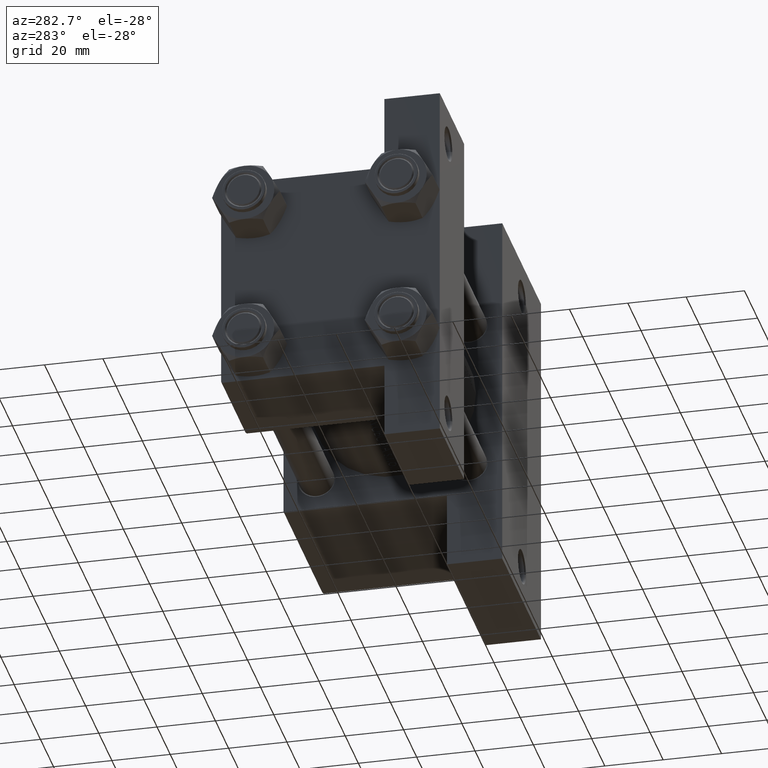
[diagram: clean part render]
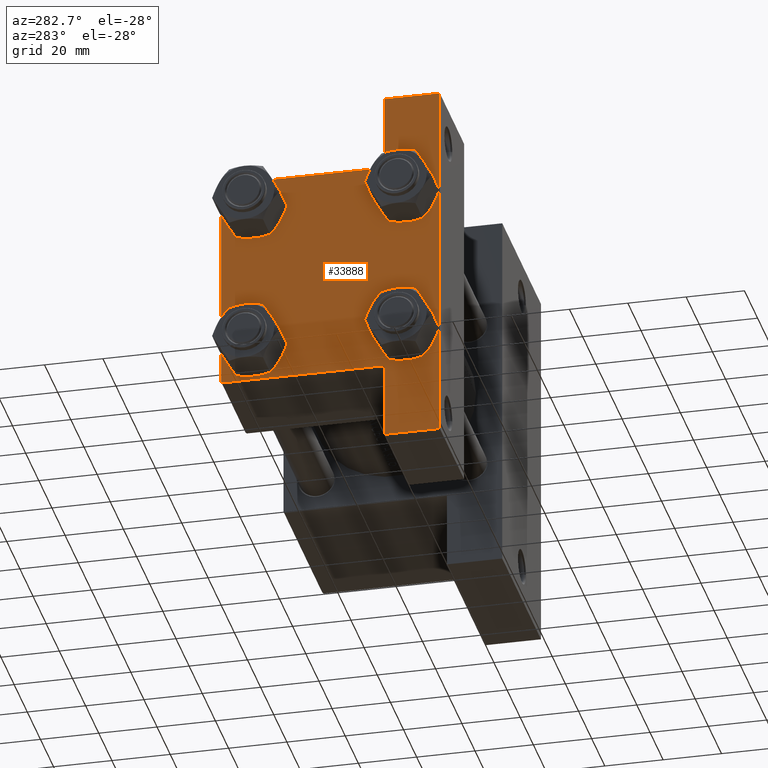
[diagram: same view with one face highlighted and labeled with its STEP entity id]
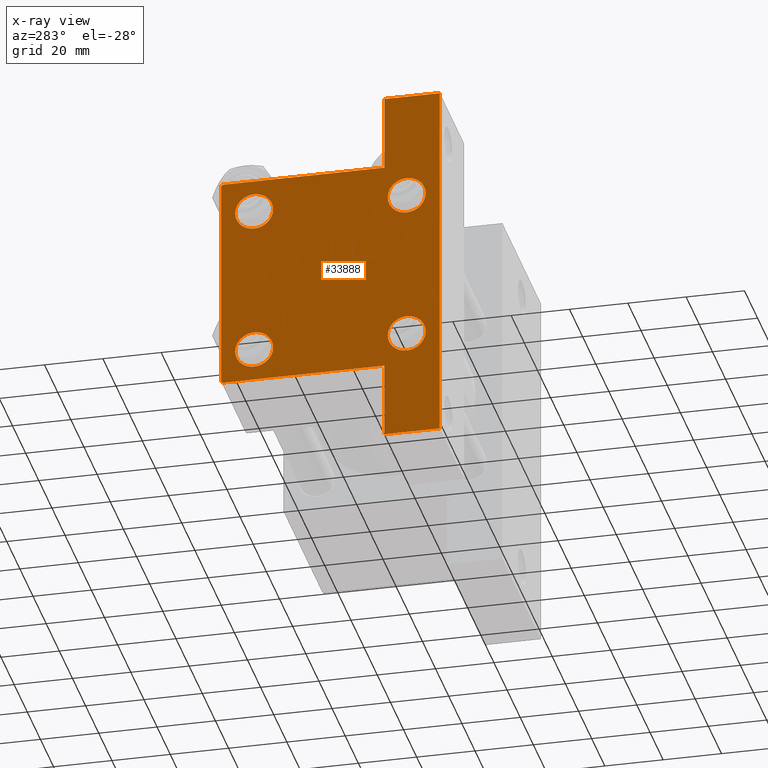
[diagram: x-ray of the same camera — body ghosted, the highlighted face saturated]
A machine part, auxiliary view. The second image highlights one B-rep face of the part: STEP entity #33888.
The next image is the same camera in x-ray: the body ghosted, the highlighted face saturated — about 0% of this face is hidden behind the body in this view.
In plain terms, the highlighted planar face has unit normal (-1, 0, -0).
Its self-contained STEP definition (entity closure, byte-faithful):
#672 = CARTESIAN_POINT ( 'NONE',  ( 0.000000000000000000, 37.49999999999999289, 37.50000000000000000 ) ) ;
#769 = CARTESIAN_POINT ( 'NONE',  ( 0.000000000000000000, -63.50000000000000000, -37.49999999999999289 ) ) ;
#1019 = CARTESIAN_POINT ( 'NONE',  ( 0.000000000000000000, 0.000000000000000000, 0.000000000000000000 ) ) ;
#1964 = CARTESIAN_POINT ( 'NONE',  ( 0.000000000000000000, 26.14999999999999858, 19.64999999999998437 ) ) ;
#2338 = VERTEX_POINT ( 'NONE', #31940 ) ;
#2354 = LINE ( 'NONE', #17017, #26414 ) ;
#2527 = VECTOR ( 'NONE', #11132, 1000.000000000000000 ) ;
#2625 = LINE ( 'NONE', #6716, #4488 ) ;
#2643 = EDGE_LOOP ( 'NONE', ( #43424, #30111, #2725, #38778, #41978, #46371, #40710, #22977, #19514, #14851 ) ) ;
#2725 = ORIENTED_EDGE ( 'NONE', *, *, #37854, .F. ) ;
#3140 = CARTESIAN_POINT ( 'NONE',  ( 0.000000000000000000, 26.14999999999999858, -26.15000000000000213 ) ) ;
#3409 = EDGE_CURVE ( 'NONE', #3422, #7363, #2354, .T. ) ;
#3422 = VERTEX_POINT ( 'NONE', #22979 ) ;
#3677 = DIRECTION ( 'NONE',  ( -1.334402673828313339E-16, -1.000000000000000000, 0.000000000000000000 ) ) ;
#3855 = VERTEX_POINT ( 'NONE', #769 ) ;
#4089 = VERTEX_POINT ( 'NONE', #17333 ) ;
#4260 = EDGE_LOOP ( 'NONE', ( #26822, #38279 ) ) ;
#4488 = VECTOR ( 'NONE', #31731, 1000.000000000000114 ) ;
#4638 = FACE_BOUND ( 'NONE', #12295, .T. ) ;
#4748 = EDGE_LOOP ( 'NONE', ( #40468, #17376 ) ) ;
#5505 = CARTESIAN_POINT ( 'NONE',  ( 0.000000000000000000, 37.49999999999999289, -37.50000000000000000 ) ) ;
#6463 = DIRECTION ( 'NONE',  ( 0.000000000000000000, 0.000000000000000000, 1.000000000000000000 ) ) ;
#6683 = VERTEX_POINT ( 'NONE', #31727 ) ;
#6716 = CARTESIAN_POINT ( 'NONE',  ( -0.000000000000000000, -37.25000000000000000, 37.25000000000000000 ) ) ;
#6846 = CARTESIAN_POINT ( 'NONE',  ( 1.561251128379126385E-14, 63.50000000000001421, 26.72167621838005047 ) ) ;
#7232 = DIRECTION ( 'NONE',  ( 1.000000000000000000, -0.000000000000000000, 0.000000000000000000 ) ) ;
#7284 = LINE ( 'NONE', #36637, #25717 ) ;
#7295 = CARTESIAN_POINT ( 'NONE',  ( 0.000000000000000000, -63.49999999999998579, 26.72167621838007889 ) ) ;
#7323 = DIRECTION ( 'NONE',  ( 0.000000000000000000, -1.734723475976806848E-16, -1.000000000000000000 ) ) ;
#7363 = VERTEX_POINT ( 'NONE', #17424 ) ;
#7608 = CIRCLE ( 'NONE', #32152, 6.500000000000015987 ) ;
#7614 = DIRECTION ( 'NONE',  ( -1.334402673828314079E-16, -1.000000000000000000, 0.000000000000000000 ) ) ;
#7946 = EDGE_CURVE ( 'NONE', #32646, #6683, #22004, .T. ) ;
#8135 = CIRCLE ( 'NONE', #28077, 6.500000000000023093 ) ;
#8156 = CARTESIAN_POINT ( 'NONE',  ( 0.000000000000000000, 37.49999999999999289, 37.50000000000000000 ) ) ;
#8239 = CIRCLE ( 'NONE', #46609, 6.500000000000023093 ) ;
#8482 = DIRECTION ( 'NONE',  ( -0.000000000000000000, 0.000000000000000000, 1.000000000000000000 ) ) ;
#8823 = EDGE_LOOP ( 'NONE', ( #45026, #15986 ) ) ;
#8849 = VECTOR ( 'NONE', #38214, 1000.000000000000000 ) ;
#9017 = CARTESIAN_POINT ( 'NONE',  ( 0.000000000000000000, -26.14999999999999147, 26.15000000000000924 ) ) ;
#10552 = LINE ( 'NONE', #13674, #43368 ) ;
#11132 = DIRECTION ( 'NONE',  ( 0.000000000000000000, -1.734723475976806848E-16, -1.000000000000000000 ) ) ;
#11188 = VECTOR ( 'NONE', #20179, 1000.000000000000000 ) ;
#11591 = ORIENTED_EDGE ( 'NONE', *, *, #33127, .T. ) ;
#11733 = DIRECTION ( 'NONE',  ( 0.000000000000000000, 0.000000000000000000, -1.000000000000000000 ) ) ;
#12029 = LINE ( 'NONE', #5505, #11188 ) ;
#12295 = EDGE_LOOP ( 'NONE', ( #11591, #40122 ) ) ;
#12333 = VECTOR ( 'NONE', #7323, 1000.000000000000000 ) ;
#13022 = CARTESIAN_POINT ( 'NONE',  ( 0.000000000000000000, -26.14999999999999147, -19.64999999999999503 ) ) ;
#13674 = CARTESIAN_POINT ( 'NONE',  ( 0.000000000000000000, -37.50000000000000711, 37.49999999999999289 ) ) ;
#13942 = CARTESIAN_POINT ( 'NONE',  ( 0.000000000000000000, -26.14999999999999147, 26.15000000000000924 ) ) ;
#14851 = ORIENTED_EDGE ( 'NONE', *, *, #23289, .F. ) ;
#15310 = VERTEX_POINT ( 'NONE', #27771 ) ;
#15500 = DIRECTION ( 'NONE',  ( 0.000000000000000000, 0.7071067811865474617, -0.7071067811865474617 ) ) ;
#15986 = ORIENTED_EDGE ( 'NONE', *, *, #42265, .T. ) ;
#16460 = DIRECTION ( 'NONE',  ( 0.000000000000000000, 0.000000000000000000, 1.000000000000000000 ) ) ;
#16483 = EDGE_CURVE ( 'NONE', #34786, #33950, #39349, .T. ) ;
#16649 = CARTESIAN_POINT ( 'NONE',  ( 0.000000000000000000, 26.14999999999999858, 32.65000000000002700 ) ) ;
#17017 = CARTESIAN_POINT ( 'NONE',  ( 0.000000000000000000, 37.24999999999999289, 37.24999999999999289 ) ) ;
#17333 = CARTESIAN_POINT ( 'NONE',  ( 3.469446951953614978E-15, -37.49999999999999289, -18.50000000000000355 ) ) ;
#17376 = ORIENTED_EDGE ( 'NONE', *, *, #41226, .T. ) ;
#17424 = CARTESIAN_POINT ( 'NONE',  ( 0.000000000000000000, 37.49999999999999289, 37.00000000000000000 ) ) ;
#18003 = DIRECTION ( 'NONE',  ( 0.000000000000000000, 0.000000000000000000, 1.000000000000000000 ) ) ;
#18855 = EDGE_CURVE ( 'NONE', #2338, #3855, #22211, .T. ) ;
#18970 = VERTEX_POINT ( 'NONE', #33040 ) ;
#19217 = LINE ( 'NONE', #8156, #8849 ) ;
#19303 = FACE_OUTER_BOUND ( 'NONE', #2643, .T. ) ;
#19514 = ORIENTED_EDGE ( 'NONE', *, *, #18855, .F. ) ;
#19953 = DIRECTION ( 'NONE',  ( 1.000000000000000000, -0.000000000000000000, 0.000000000000000000 ) ) ;
#20179 = DIRECTION ( 'NONE',  ( 0.000000000000000000, -1.000000000000000000, -9.251858538542972814E-17 ) ) ;
#20440 = CIRCLE ( 'NONE', #37364, 6.500000000000015987 ) ;
#20458 = DIRECTION ( 'NONE',  ( 0.000000000000000000, 0.000000000000000000, 1.000000000000000000 ) ) ;
#21722 = EDGE_CURVE ( 'NONE', #33317, #4089, #10552, .T. ) ;
#22004 = LINE ( 'NONE', #6846, #12333 ) ;
#22211 = LINE ( 'NONE', #7295, #2527 ) ;
#22977 = ORIENTED_EDGE ( 'NONE', *, *, #24596, .T. ) ;
#22979 = CARTESIAN_POINT ( 'NONE',  ( 0.000000000000000000, 36.99999999999999289, 37.50000000000000000 ) ) ;
#23289 = EDGE_CURVE ( 'NONE', #4089, #2338, #7284, .T. ) ;
#23523 = CIRCLE ( 'NONE', #43512, 6.500000000000015987 ) ;
#23812 = DIRECTION ( 'NONE',  ( 1.000000000000000000, -0.000000000000000000, 0.000000000000000000 ) ) ;
#24233 = CARTESIAN_POINT ( 'NONE',  ( 0.000000000000000000, -26.14999999999999147, 32.65000000000003411 ) ) ;
#24596 = EDGE_CURVE ( 'NONE', #6683, #3855, #12029, .T. ) ;
#24631 = EDGE_CURVE ( 'NONE', #47325, #29341, #8135, .T. ) ;
#25421 = VERTEX_POINT ( 'NONE', #24233 ) ;
#25454 = DIRECTION ( 'NONE',  ( 1.000000000000000000, -0.000000000000000000, 0.000000000000000000 ) ) ;
#25717 = VECTOR ( 'NONE', #3677, 1000.000000000000000 ) ;
#25902 = CARTESIAN_POINT ( 'NONE',  ( 1.561251128379126385E-14, 63.50000000000001421, -18.50000000000000355 ) ) ;
#26414 = VECTOR ( 'NONE', #15500, 1000.000000000000114 ) ;
#26714 = CARTESIAN_POINT ( 'NONE',  ( 0.000000000000000000, 26.14999999999999858, 26.15000000000000213 ) ) ;
#26775 = FACE_BOUND ( 'NONE', #4748, .T. ) ;
#26822 = ORIENTED_EDGE ( 'NONE', *, *, #30275, .T. ) ;
#26924 = CARTESIAN_POINT ( 'NONE',  ( 0.000000000000000000, 37.49999999999999289, -18.49999999999999645 ) ) ;
#27660 = CARTESIAN_POINT ( 'NONE',  ( 0.000000000000000000, 26.14999999999999858, -26.15000000000000213 ) ) ;
#27771 = CARTESIAN_POINT ( 'NONE',  ( 0.000000000000000000, 26.14999999999999858, -19.64999999999998792 ) ) ;
#28077 = AXIS2_PLACEMENT_3D ( 'NONE', #26714, #19953, #41395 ) ;
#29319 = CARTESIAN_POINT ( 'NONE',  ( 0.000000000000000000, -26.14999999999999147, -26.15000000000000924 ) ) ;
#29341 = VERTEX_POINT ( 'NONE', #1964 ) ;
#29414 = VERTEX_POINT ( 'NONE', #32998 ) ;
#29536 = VECTOR ( 'NONE', #7614, 1000.000000000000000 ) ;
#30111 = ORIENTED_EDGE ( 'NONE', *, *, #45441, .T. ) ;
#30250 = EDGE_CURVE ( 'NONE', #44666, #15310, #20440, .T. ) ;
#30275 = EDGE_CURVE ( 'NONE', #33950, #34786, #23523, .T. ) ;
#30432 = CIRCLE ( 'NONE', #39619, 6.500000000000023093 ) ;
#30516 = LINE ( 'NONE', #672, #42002 ) ;
#31247 = CARTESIAN_POINT ( 'NONE',  ( 0.000000000000000000, -37.50000000000000711, 36.99999999999999289 ) ) ;
#31727 = CARTESIAN_POINT ( 'NONE',  ( 1.561251128379126385E-14, 63.50000000000000000, -37.50000000000002132 ) ) ;
#31731 = DIRECTION ( 'NONE',  ( -0.000000000000000000, 0.7071067811865474617, 0.7071067811865474617 ) ) ;
#31733 = DIRECTION ( 'NONE',  ( 0.000000000000000000, 0.000000000000000000, 1.000000000000000000 ) ) ;
#31906 = CARTESIAN_POINT ( 'NONE',  ( 0.000000000000000000, -26.14999999999999147, -32.65000000000002700 ) ) ;
#31940 = CARTESIAN_POINT ( 'NONE',  ( 0.000000000000000000, -63.50000000000000000, -18.50000000000000355 ) ) ;
#31972 = DIRECTION ( 'NONE',  ( 0.000000000000000000, 9.251858538542971581E-17, -1.000000000000000000 ) ) ;
#31982 = DIRECTION ( 'NONE',  ( 1.000000000000000000, -0.000000000000000000, 0.000000000000000000 ) ) ;
#32152 = AXIS2_PLACEMENT_3D ( 'NONE', #3140, #7232, #47158 ) ;
#32646 = VERTEX_POINT ( 'NONE', #43948 ) ;
#32933 = DIRECTION ( 'NONE',  ( 1.000000000000000000, -0.000000000000000000, 0.000000000000000000 ) ) ;
#32998 = CARTESIAN_POINT ( 'NONE',  ( 0.000000000000000000, -26.14999999999999147, 19.64999999999999147 ) ) ;
#33040 = CARTESIAN_POINT ( 'NONE',  ( 0.000000000000000000, -37.00000000000000711, 37.49999999999999289 ) ) ;
#33127 = EDGE_CURVE ( 'NONE', #15310, #44666, #7608, .T. ) ;
#33317 = VERTEX_POINT ( 'NONE', #31247 ) ;
#33888 = ADVANCED_FACE ( 'NONE', ( #45053, #37604, #4638, #26775, #19303 ), #33978, .T. ) ;
#33950 = VERTEX_POINT ( 'NONE', #13022 ) ;
#33978 = PLANE ( 'NONE',  #45981 ) ;
#34786 = VERTEX_POINT ( 'NONE', #31906 ) ;
#35728 = EDGE_CURVE ( 'NONE', #32646, #37742, #41047, .T. ) ;
#36256 = AXIS2_PLACEMENT_3D ( 'NONE', #29319, #25454, #18003 ) ;
#36289 = CARTESIAN_POINT ( 'NONE',  ( 0.000000000000000000, 26.14999999999999858, 26.15000000000000213 ) ) ;
#36637 = CARTESIAN_POINT ( 'NONE',  ( 1.046800244763970530E-30, -63.49999999999998579, -18.50000000000000355 ) ) ;
#36643 = AXIS2_PLACEMENT_3D ( 'NONE', #36289, #32933, #6463 ) ;
#37364 = AXIS2_PLACEMENT_3D ( 'NONE', #27660, #31982, #31733 ) ;
#37604 = FACE_BOUND ( 'NONE', #4260, .T. ) ;
#37742 = VERTEX_POINT ( 'NONE', #26924 ) ;
#37854 = EDGE_CURVE ( 'NONE', #3422, #18970, #19217, .T. ) ;
#38214 = DIRECTION ( 'NONE',  ( 0.000000000000000000, -1.000000000000000000, -9.251858538542971581E-17 ) ) ;
#38279 = ORIENTED_EDGE ( 'NONE', *, *, #16483, .T. ) ;
#38481 = DIRECTION ( 'NONE',  ( 0.000000000000000000, 0.000000000000000000, 1.000000000000000000 ) ) ;
#38778 = ORIENTED_EDGE ( 'NONE', *, *, #3409, .T. ) ;
#38912 = CIRCLE ( 'NONE', #36643, 6.500000000000023093 ) ;
#38933 = EDGE_CURVE ( 'NONE', #25421, #29414, #30432, .T. ) ;
#38953 = CARTESIAN_POINT ( 'NONE',  ( 0.000000000000000000, -26.14999999999999147, -26.15000000000000924 ) ) ;
#39349 = CIRCLE ( 'NONE', #36256, 6.500000000000015987 ) ;
#39619 = AXIS2_PLACEMENT_3D ( 'NONE', #13942, #39939, #20458 ) ;
#39939 = DIRECTION ( 'NONE',  ( 1.000000000000000000, -0.000000000000000000, 0.000000000000000000 ) ) ;
#40122 = ORIENTED_EDGE ( 'NONE', *, *, #30250, .T. ) ;
#40468 = ORIENTED_EDGE ( 'NONE', *, *, #24631, .T. ) ;
#40710 = ORIENTED_EDGE ( 'NONE', *, *, #7946, .T. ) ;
#41047 = LINE ( 'NONE', #25902, #29536 ) ;
#41226 = EDGE_CURVE ( 'NONE', #29341, #47325, #38912, .T. ) ;
#41395 = DIRECTION ( 'NONE',  ( 0.000000000000000000, 0.000000000000000000, 1.000000000000000000 ) ) ;
#41459 = DIRECTION ( 'NONE',  ( -1.000000000000000000, 0.000000000000000000, -0.000000000000000000 ) ) ;
#41709 = EDGE_CURVE ( 'NONE', #7363, #37742, #30516, .T. ) ;
#41978 = ORIENTED_EDGE ( 'NONE', *, *, #41709, .T. ) ;
#42002 = VECTOR ( 'NONE', #11733, 1000.000000000000000 ) ;
#42265 = EDGE_CURVE ( 'NONE', #29414, #25421, #8239, .T. ) ;
#43368 = VECTOR ( 'NONE', #31972, 1000.000000000000000 ) ;
#43424 = ORIENTED_EDGE ( 'NONE', *, *, #21722, .F. ) ;
#43512 = AXIS2_PLACEMENT_3D ( 'NONE', #38953, #23812, #38481 ) ;
#43948 = CARTESIAN_POINT ( 'NONE',  ( 1.561251128379126385E-14, 63.50000000000000000, -18.50000000000000355 ) ) ;
#44666 = VERTEX_POINT ( 'NONE', #45711 ) ;
#45026 = ORIENTED_EDGE ( 'NONE', *, *, #38933, .T. ) ;
#45053 = FACE_BOUND ( 'NONE', #8823, .T. ) ;
#45441 = EDGE_CURVE ( 'NONE', #33317, #18970, #2625, .T. ) ;
#45711 = CARTESIAN_POINT ( 'NONE',  ( 0.000000000000000000, 26.14999999999999858, -32.65000000000001990 ) ) ;
#45981 = AXIS2_PLACEMENT_3D ( 'NONE', #1019, #41459, #8482 ) ;
#46286 = DIRECTION ( 'NONE',  ( 1.000000000000000000, -0.000000000000000000, 0.000000000000000000 ) ) ;
#46371 = ORIENTED_EDGE ( 'NONE', *, *, #35728, .F. ) ;
#46609 = AXIS2_PLACEMENT_3D ( 'NONE', #9017, #46286, #16460 ) ;
#47158 = DIRECTION ( 'NONE',  ( 0.000000000000000000, 0.000000000000000000, 1.000000000000000000 ) ) ;
#47325 = VERTEX_POINT ( 'NONE', #16649 ) ;